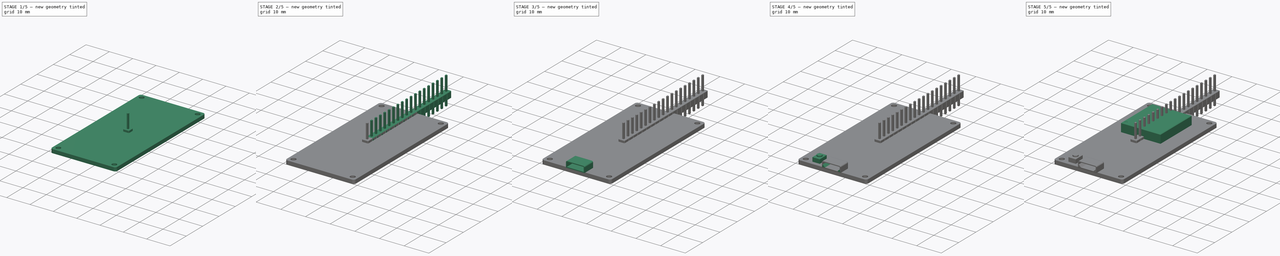
[diagram: build sequence overview — one tinted view per stage of 5, left to right]
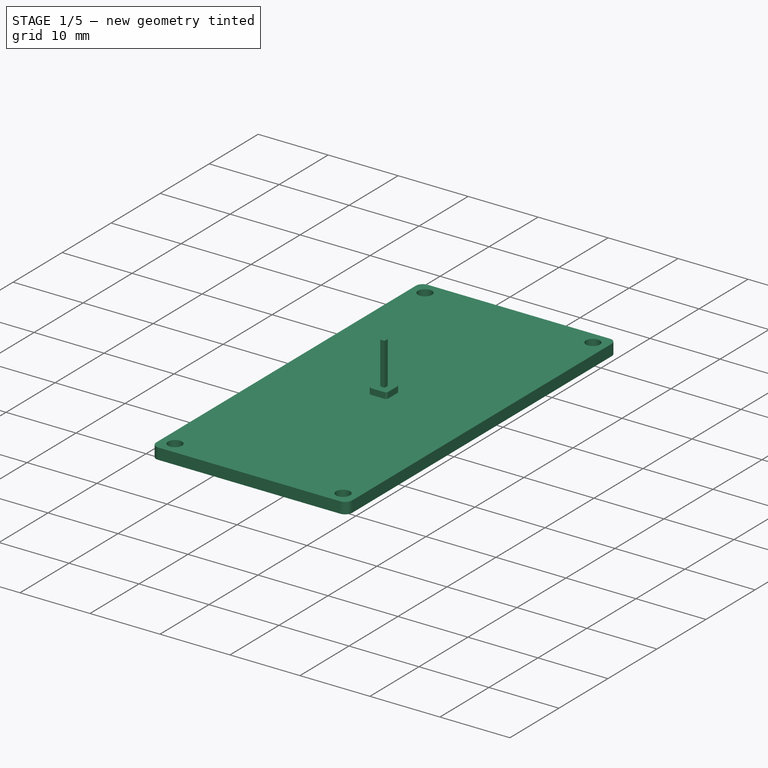
[diagram: stage 1 of 5 — iso view after this stage's code; geometry added in this stage tinted green]
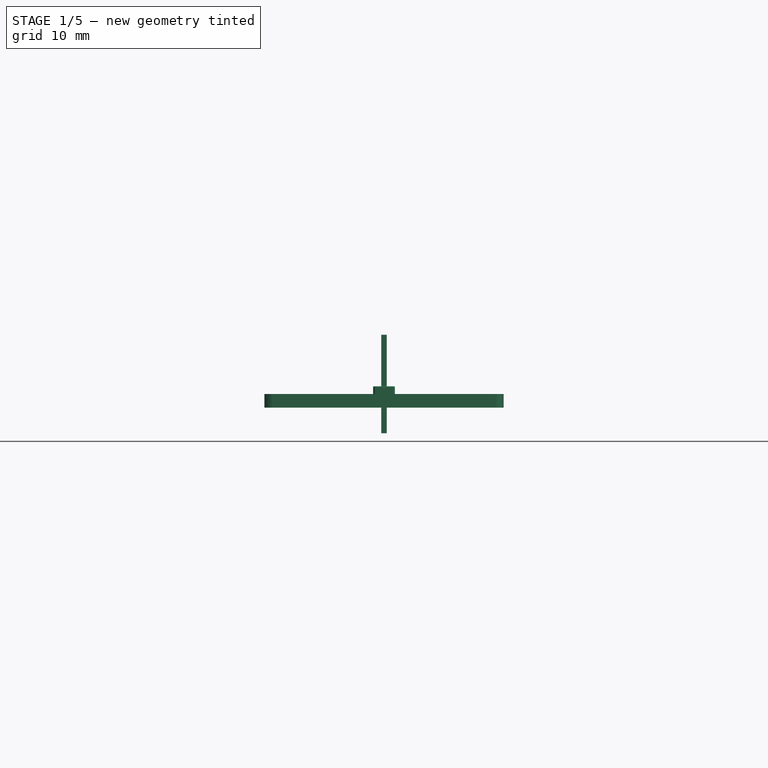
[diagram: stage 1 of 5 — front view after this stage's code; geometry added in this stage tinted green]
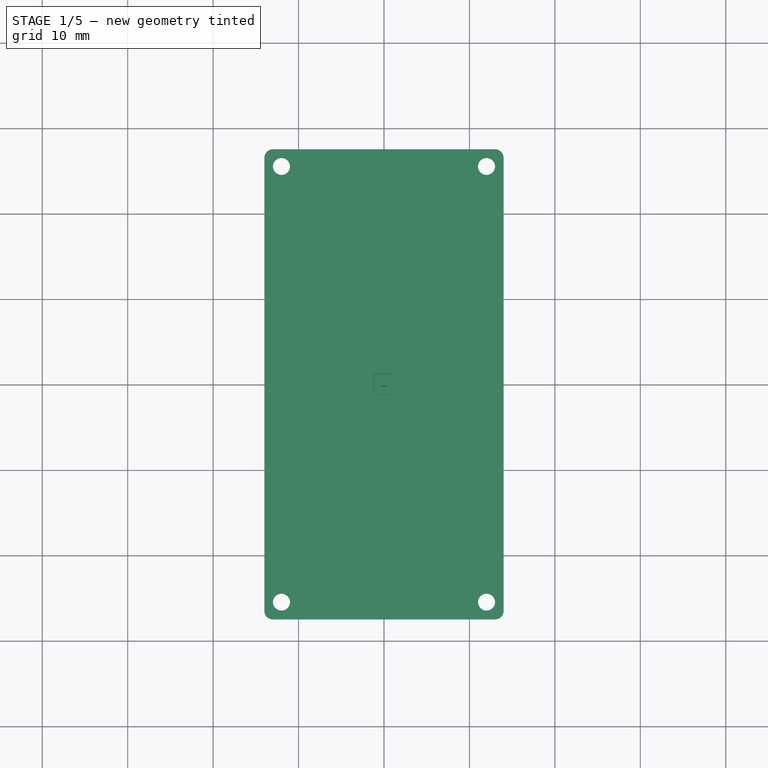
[diagram: stage 1 of 5 — top view after this stage's code; geometry added in this stage tinted green]
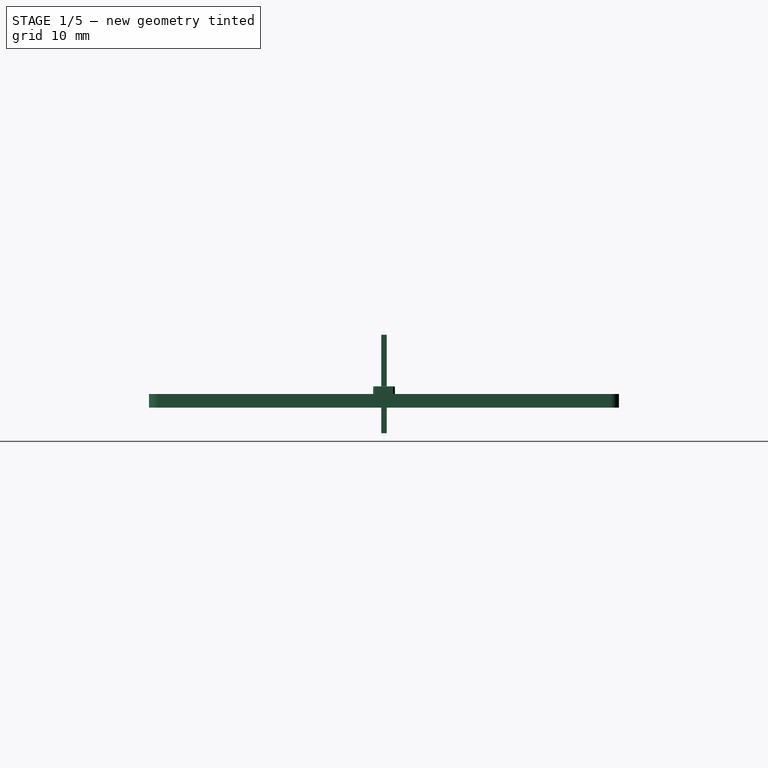
[diagram: stage 1 of 5 — right view after this stage's code; geometry added in this stage tinted green]
FCSTD DOCUMENT  (FreeCAD 0.18R4 (GitTag))
Label: ESP32 Devkit C
License: CreativeCommons Attribution-NonCommercial
LicenseURL: http://creativecommons.org/licenses/by-nc/4.0/
objects: Sketcher::SketchObject×13, PartDesign::Pad×11, PartDesign::Body×11, PartDesign::Chamfer×10, PartDesign::ShapeBinder×6, App::Part×5, PartDesign::Fillet×4, Part::FeaturePython×4, PartDesign::Pocket×2
note: 74 computed .brp shape members not serialized (recipe doc carries the construction recipe); baked Part::Feature solids carry a one-line shape summary decoded from their .brp

FEATURE [Sketcher::SketchObject] Sketch
  MapMode = 5
  Support = -> [XY_Plane001]
  sketch-geometry (8):
    g0: LineSegment StartX=-14 StartY=27.5 StartZ=0 EndX=14 EndY=27.5 EndZ=0
    g1: LineSegment StartX=14 StartY=27.5 StartZ=0 EndX=14 EndY=-27.5 EndZ=0
    g2: LineSegment StartX=14 StartY=-27.5 StartZ=0 EndX=-14 EndY=-27.5 EndZ=0
    g3: LineSegment StartX=-14 StartY=-27.5 StartZ=0 EndX=-14 EndY=27.5 EndZ=0
    g4: Circle CenterX=-12 CenterY=25.5 CenterZ=0 NormalX=0 NormalY=0 NormalZ=1 AngleXU=0 Radius=1
    g5: Circle CenterX=12 CenterY=25.5 CenterZ=0 NormalX=0 NormalY=0 NormalZ=1 AngleXU=0 Radius=1
    g6: Circle CenterX=-12 CenterY=-25.5 CenterZ=0 NormalX=0 NormalY=0 NormalZ=1 AngleXU=0 Radius=1
    g7: Circle CenterX=12 CenterY=-25.5 CenterZ=0 NormalX=0 NormalY=0 NormalZ=1 AngleXU=0 Radius=1
  constraints (19):
    c: Coincident(g0,g1)
    c: Coincident(g1,g2)
    c: Coincident(g2,g3)
    c: Coincident(g3,g0)
    c: Horizontal(g2)
    c: Vertical(g3)
    c: Symmetric(g0,g0,g-2)
    c: Symmetric(g0,g1,g-1)
    c: DistanceX(g0,g0) = 28
    c: DistanceY(g1,g1) = 55
    c: Equal(g4,g5)
    c: Equal(g5,g6)
    c: Equal(g6,g7)
    c: Radius(g4) = 1
    c: DistanceX(g0,g4) = 2
    c: DistanceY(g4,g0) = 2
    c: Symmetric(g5,g4,g-2)
    c: Symmetric(g5,g7,g-1)
    c: Symmetric(g6,g7,g-2)
FEATURE [PartDesign::Pad] Pad
  Length = 1.6
  Length2 = 100
  Profile = -> Sketch
  Type = 0
FEATURE [App::Part] Part010  label="Pin Header (left)"
  Group = -> [Body035,Body034,Array,Array001]
  Origin = -> Origin051
  Placement = pos=(-12.7,-22.85,-1.6e-15) rot=(0,1,0;3.14159rad)
FEATURE [Sketcher::SketchObject] Sketch209
  MapMode = 5
  Support = -> [XY_Plane055]
  sketch-geometry (4):
    g0: LineSegment StartX=-1.27 StartY=-1.27 StartZ=0 EndX=1.27 EndY=-1.27 EndZ=0
    g1: LineSegment StartX=1.27 StartY=-1.27 StartZ=0 EndX=1.27 EndY=1.27 EndZ=0
    g2: LineSegment StartX=1.27 StartY=1.27 StartZ=0 EndX=-1.27 EndY=1.27 EndZ=0
    g3: LineSegment StartX=-1.27 StartY=1.27 StartZ=0 EndX=-1.27 EndY=-1.27 EndZ=0
  constraints (10):
    c: Coincident(g0,g1)
    c: Coincident(g1,g2)
    c: Coincident(g2,g3)
    c: Coincident(g3,g0)
    c: Horizontal(g0)
    c: Vertical(g3)
    c: Symmetric(g1,g2,g-2)
    c: Symmetric(g0,g1,g-1)
    c: Equal(g3,g2)
    c: DistanceX(g2,g2) = 2.54
FEATURE [Sketcher::SketchObject] Sketch210
  MapMode = 5
  Placement = pos=(0,0,0) rot=(1,0,0;1.5708rad)
  Support = -> [XZ_Plane053]
  sketch-geometry (4):
    g0: LineSegment StartX=-0.32 StartY=-3 StartZ=0 EndX=0.32 EndY=-3 EndZ=0
    g1: LineSegment StartX=0.32 StartY=-3 StartZ=0 EndX=0.32 EndY=8.54 EndZ=0
    g2: LineSegment StartX=0.32 StartY=8.54 StartZ=0 EndX=-0.32 EndY=8.54 EndZ=0
    g3: LineSegment StartX=-0.32 StartY=8.54 StartZ=0 EndX=-0.32 EndY=-3 EndZ=0
  constraints (11):
    c: Coincident(g0,g1)
    c: Coincident(g1,g2)
    c: Coincident(g2,g3)
    c: Coincident(g3,g0)
    c: Horizontal(g0)
    c: Vertical(g1)
    c: Vertical(g3)
    c: DistanceY(g-1,g1) = 8.54
    c: DistanceY(g0,g-1) = 3
    c: Symmetric(g2,g1,g-2)
    c: DistanceX(g2,g2) = 0.64
FEATURE [PartDesign::Pad] Pad064
  Length = 2.5
  Length2 = 100
  Profile = -> Sketch209
  Type = 0
FEATURE [PartDesign::Pad] Pad065
  Length = 0.32
  Length2 = 0.32
  Placement = pos=(0,0,0) rot=(1,0,0;1.5708rad)
  Profile = -> Sketch210
  Type = 4
FEATURE [PartDesign::Chamfer] Chamfer017
  Base = -> Pad064 [Edge2,Edge1,Edge5,Edge8]
  BaseFeature = -> Pad064
  Size = 0.2
FEATURE [PartDesign::Chamfer] Chamfer016
  Base = -> Chamfer017 [Face5,Face2]
  BaseFeature = -> Chamfer017
  Size = 0.05
FEATURE [App::Part] Part011  label="Pin Header (right)"
  Group = -> [Body036,Body037,Array002,Array003]
  Origin = -> Origin053
  Placement = pos=(12.7,-22.85,1.5e-15) rot=(0,1,0;3.14159rad)
FEATURE [PartDesign::Fillet] Fillet003
  Base = -> Pad [Edge5,Edge8,Edge2,Edge1]
  BaseFeature = -> Pad
  Radius = 1
FEATURE [PartDesign::Body] Body  label="ESP32 PCB"
  Group = -> [Sketch,Pad,Fillet003]
  Origin = -> Origin001
  Tip = -> Fillet003
FEATURE [App::Part] Part  label="ESP32 Devkit C"
  Group = -> [Body,Body001,Part001,Part002,Body006,Part010,Part011]
  Origin = -> Origin
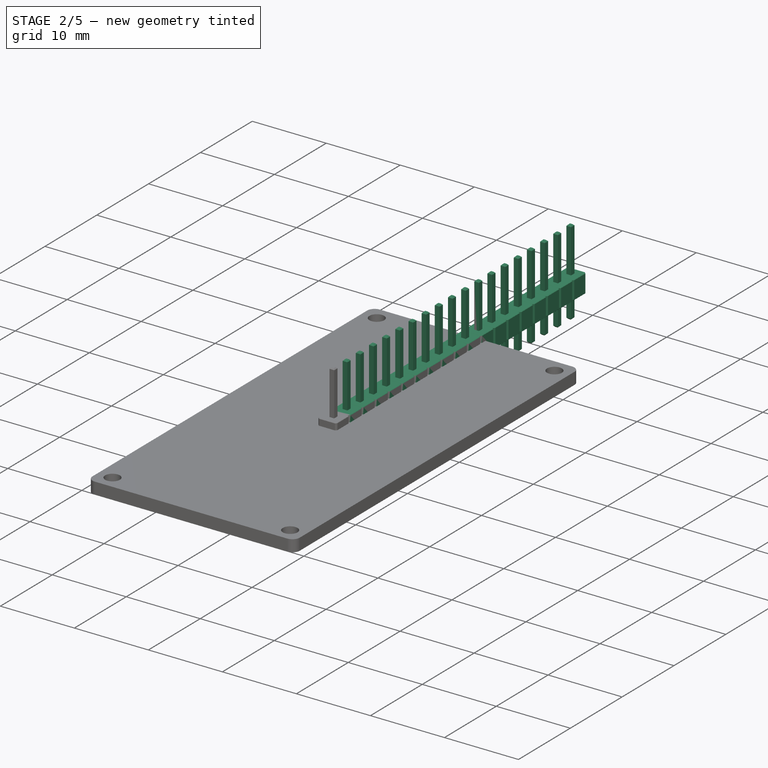
[diagram: stage 2 of 5 — iso view after this stage's code; geometry added in this stage tinted green]
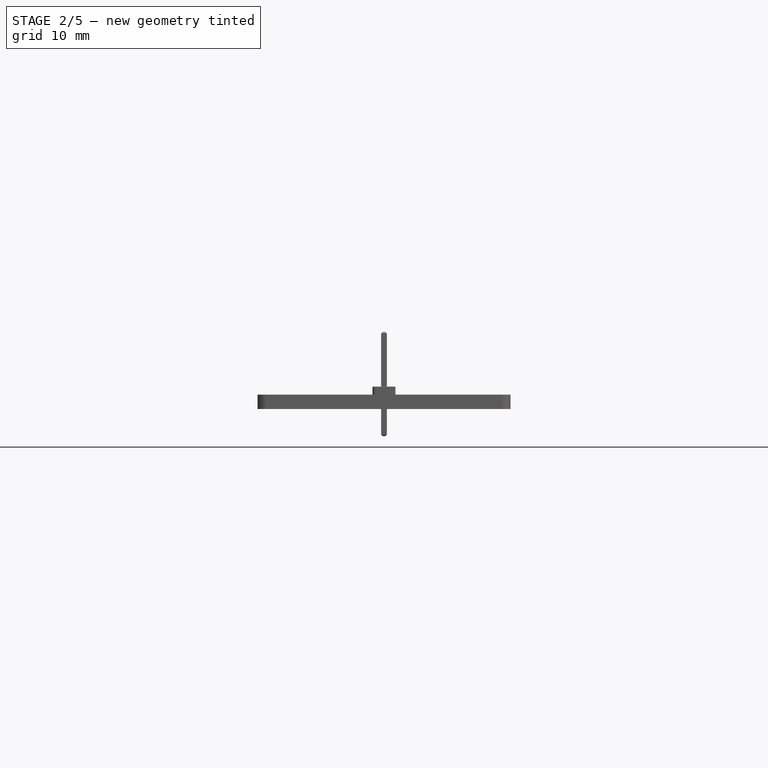
[diagram: stage 2 of 5 — front view after this stage's code; geometry added in this stage tinted green]
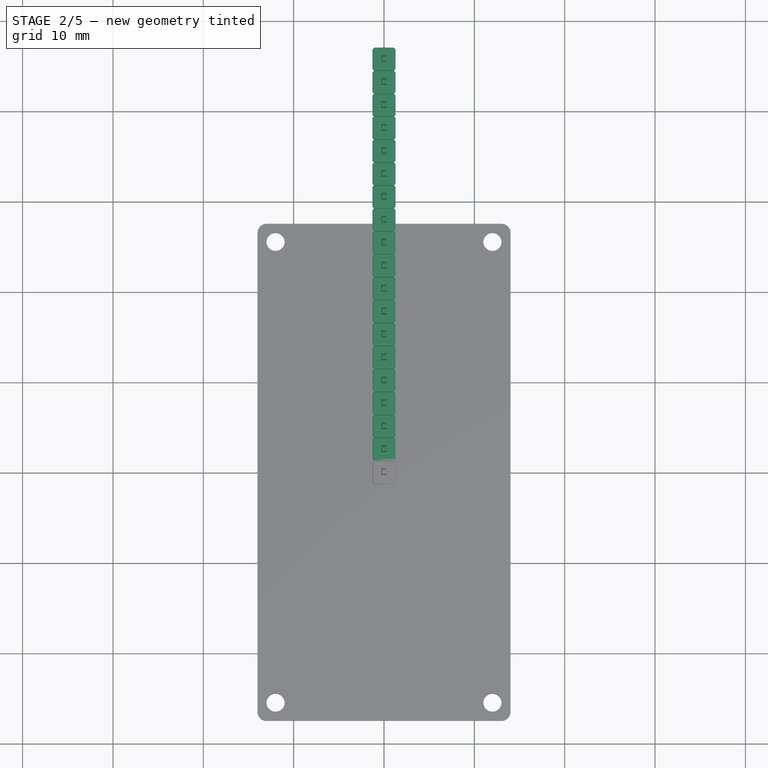
[diagram: stage 2 of 5 — top view after this stage's code; geometry added in this stage tinted green]
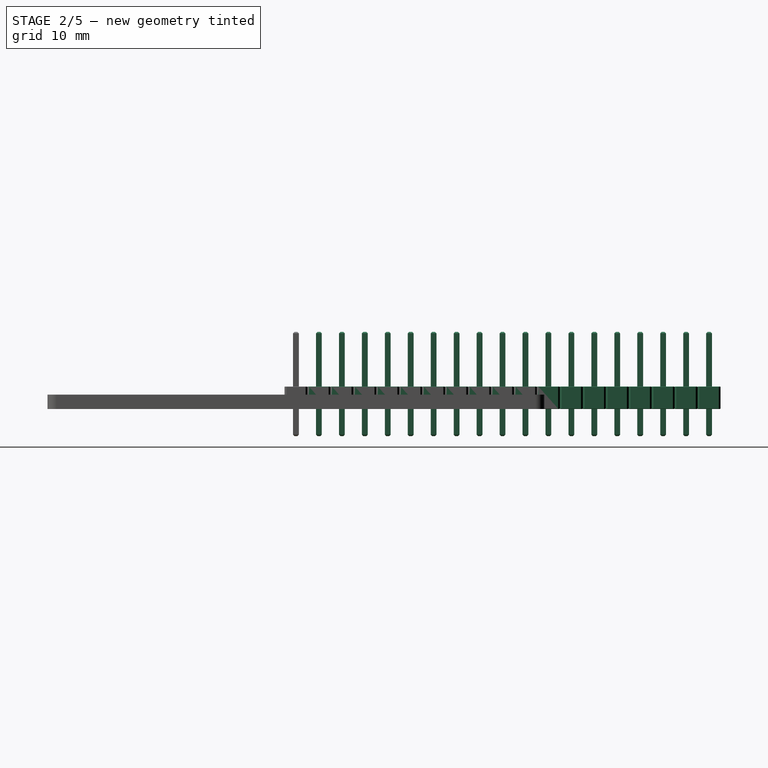
[diagram: stage 2 of 5 — right view after this stage's code; geometry added in this stage tinted green]
FEATURE [PartDesign::Body] Body006  label="Micro-USB"
  Group = -> [CopyPad003,Sketch007,Pad006,Sketch008,Pocket001,Fillet,Chamfer003,Fillet001,Fillet002]
  Origin = -> Origin009
  Tip = -> Fillet002
FEATURE [Sketcher::SketchObject] Sketch207
  MapMode = 5
  Placement = pos=(0,0,0) rot=(1,0,0;1.5708rad)
  Support = -> [XZ_Plane050]
  sketch-geometry (4):
    g0: LineSegment StartX=-0.32 StartY=-3 StartZ=0 EndX=0.32 EndY=-3 EndZ=0
    g1: LineSegment StartX=0.32 StartY=-3 StartZ=0 EndX=0.32 EndY=8.54 EndZ=0
    g2: LineSegment StartX=0.32 StartY=8.54 StartZ=0 EndX=-0.32 EndY=8.54 EndZ=0
    g3: LineSegment StartX=-0.32 StartY=8.54 StartZ=0 EndX=-0.32 EndY=-3 EndZ=0
  constraints (11):
    c: Coincident(g0,g1)
    c: Coincident(g1,g2)
    c: Coincident(g2,g3)
    c: Coincident(g3,g0)
    c: Horizontal(g0)
    c: Vertical(g1)
    c: Vertical(g3)
    c: DistanceY(g-1,g1) = 8.54
    c: DistanceY(g0,g-1) = 3
    c: Symmetric(g2,g1,g-2)
    c: DistanceX(g2,g2) = 0.64
FEATURE [Sketcher::SketchObject] Sketch208
  MapMode = 5
  Support = -> [XY_Plane052]
  sketch-geometry (4):
    g0: LineSegment StartX=-1.27 StartY=-1.27 StartZ=0 EndX=1.27 EndY=-1.27 EndZ=0
    g1: LineSegment StartX=1.27 StartY=-1.27 StartZ=0 EndX=1.27 EndY=1.27 EndZ=0
    g2: LineSegment StartX=1.27 StartY=1.27 StartZ=0 EndX=-1.27 EndY=1.27 EndZ=0
    g3: LineSegment StartX=-1.27 StartY=1.27 StartZ=0 EndX=-1.27 EndY=-1.27 EndZ=0
  constraints (10):
    c: Coincident(g0,g1)
    c: Coincident(g1,g2)
    c: Coincident(g2,g3)
    c: Coincident(g3,g0)
    c: Horizontal(g0)
    c: Vertical(g3)
    c: Symmetric(g1,g2,g-2)
    c: Symmetric(g0,g1,g-1)
    c: Equal(g3,g2)
    c: DistanceX(g2,g2) = 2.54
FEATURE [PartDesign::Pad] Pad062
  Length = 0.32
  Length2 = 0.32
  Placement = pos=(0,0,0) rot=(1,0,0;1.5708rad)
  Profile = -> Sketch207
  Type = 4
FEATURE [PartDesign::Chamfer] Chamfer012
  Base = -> Pad062 [Face3,Face1]
  BaseFeature = -> Pad062
  Placement = pos=(0,0,0) rot=(1,0,0;1.5708rad)
  Size = 0.16
FEATURE [Part::FeaturePython] Array001  # Draft array (typed FeaturePython)
  Angle = 360
  ArrayType = 0
  Axis = (0,0,1)
  Base = -> Body034
  Center = (0,0,0)
  Fuse = false
  IntervalAxis = (0,0,0)
  IntervalX = (1,0,0)
  IntervalY = (0,2.54,0)
  IntervalZ = (0,0,1)
  NumberPolar = 1
  NumberX = 1
  NumberY = 19
  NumberZ = 1
FEATURE [PartDesign::Chamfer] Chamfer015
  Base = -> Pad065 [Face3,Face1]
  BaseFeature = -> Pad065
  Placement = pos=(0,0,0) rot=(1,0,0;1.5708rad)
  Size = 0.16
FEATURE [PartDesign::Body] Body037  label="Pin Header Pin002"
  Group = -> [Sketch210,Pad065,Chamfer015]
  Origin = -> Origin055
  Tip = -> Chamfer015
FEATURE [Part::FeaturePython] Array003  # Draft array (typed FeaturePython)
  Angle = 360
  ArrayType = 0
  Axis = (0,0,1)
  Base = -> Body037
  Center = (0,0,0)
  Fuse = false
  IntervalAxis = (0,0,0)
  IntervalX = (1,0,0)
  IntervalY = (0,2.54,0)
  IntervalZ = (0,0,1)
  NumberPolar = 1
  NumberX = 1
  NumberY = 19
  NumberZ = 1
FEATURE [PartDesign::Body] Body036  label="Pin Header Block002"
  Group = -> [Sketch209,Pad064,Chamfer017,Chamfer016]
  Origin = -> Origin054
  Tip = -> Chamfer016
FEATURE [Part::FeaturePython] Array002  # Draft array (typed FeaturePython)
  Angle = 360
  ArrayType = 0
  Axis = (0,0,1)
  Base = -> Body036
  Center = (0,0,0)
  Fuse = false
  IntervalAxis = (0,0,0)
  IntervalX = (1,0,0)
  IntervalY = (0,2.54,0)
  IntervalZ = (0,0,1)
  NumberPolar = 1
  NumberX = 1
  NumberY = 19
  NumberZ = 1
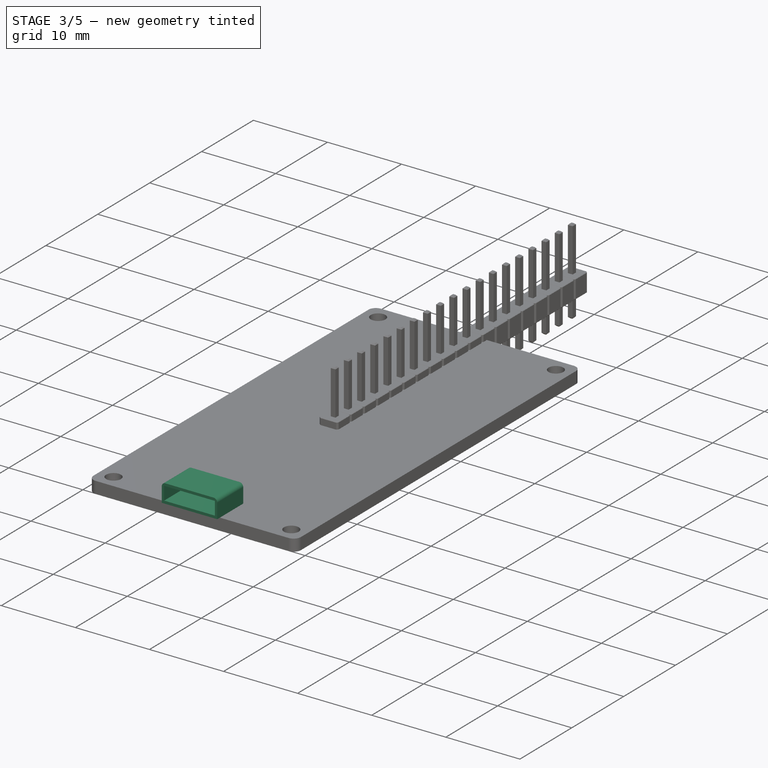
[diagram: stage 3 of 5 — iso view after this stage's code; geometry added in this stage tinted green]
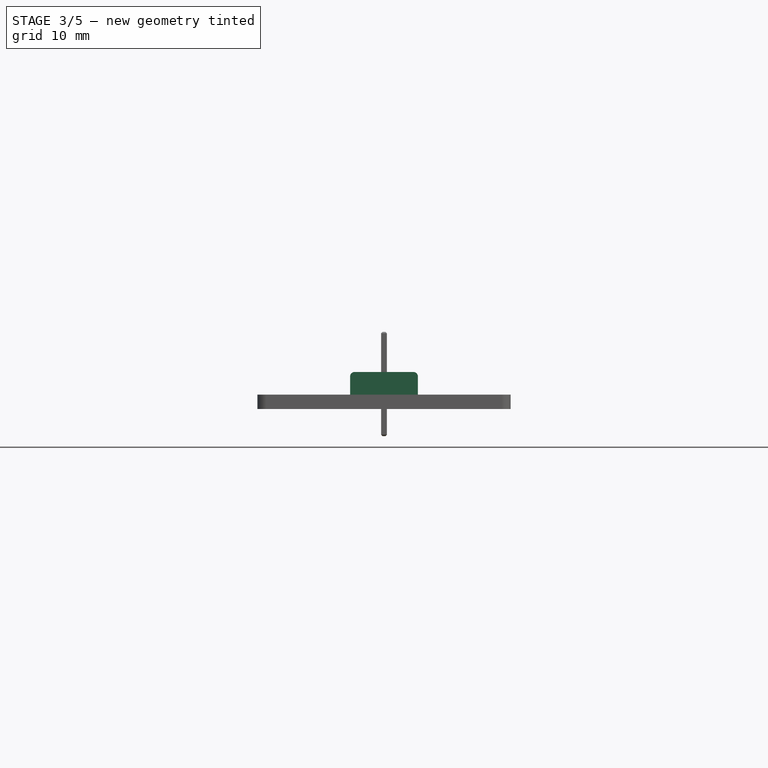
[diagram: stage 3 of 5 — front view after this stage's code; geometry added in this stage tinted green]
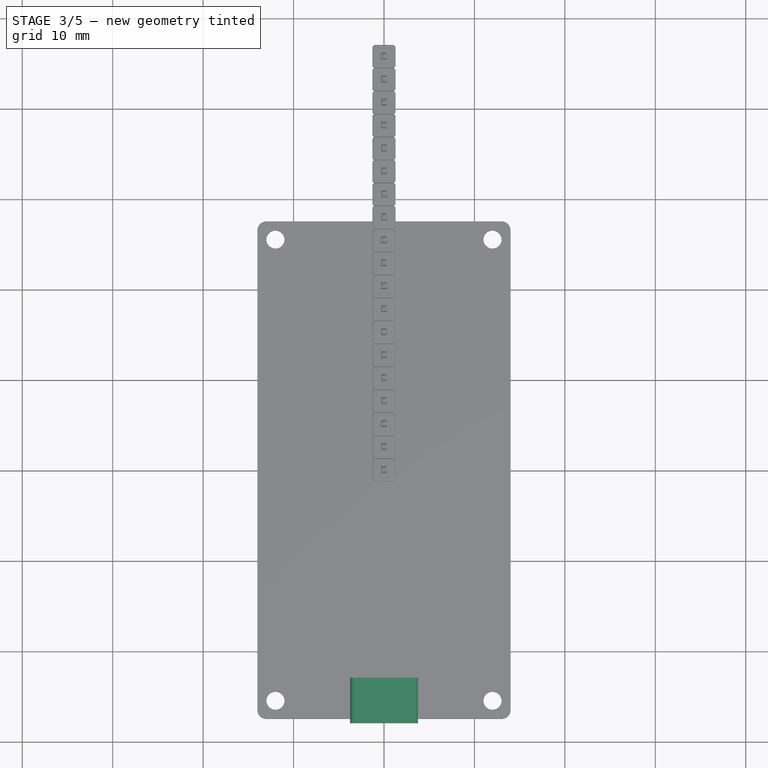
[diagram: stage 3 of 5 — top view after this stage's code; geometry added in this stage tinted green]
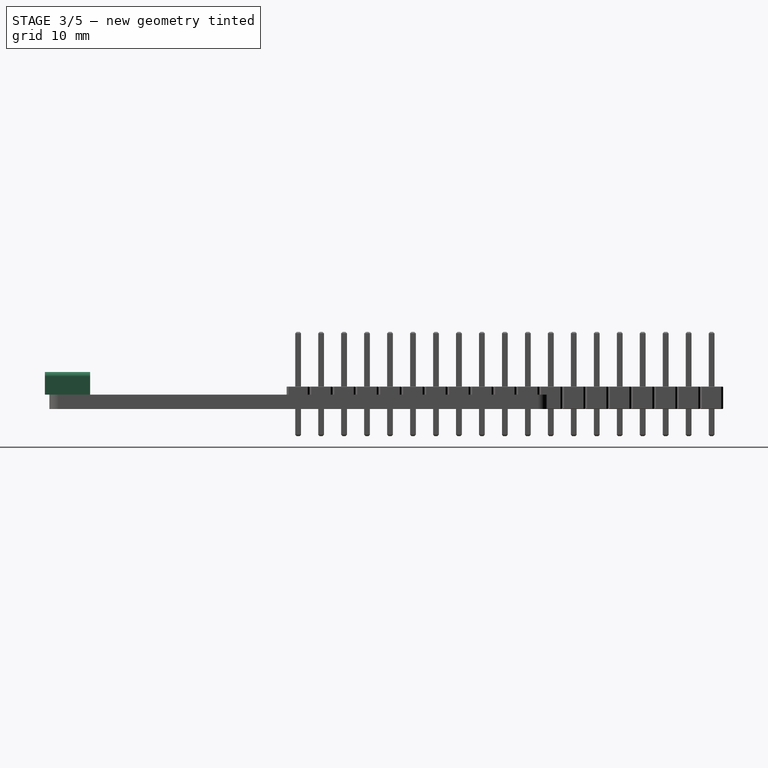
[diagram: stage 3 of 5 — right view after this stage's code; geometry added in this stage tinted green]
FEATURE [PartDesign::Body] Body005  label="Push Button Block001"
  Group = -> [CopyPad002,Sketch005,Pad005,Chamfer002]
  Origin = -> Origin008
  Tip = -> Chamfer002
FEATURE [App::Part] Part002  label="Push Button Boot"
  Group = -> [Body005,Body004]
  Origin = -> Origin006
  Placement = pos=(15,0,0) rot=(0,0,1;0rad)
FEATURE [PartDesign::ShapeBinder] CopyPad003
  Placement = pos=(0,0,1.6) rot=(0,0,1;0rad)
  TraceSupport = false
FEATURE [Sketcher::SketchObject] Sketch007
  MapMode = 5
  Placement = pos=(0,0,1.6) rot=(0,0,1;0rad)
  Support = -> [CopyPad003]
  sketch-geometry (4):
    g0: LineSegment StartX=-3.75 StartY=-28 StartZ=0 EndX=3.75 EndY=-28 EndZ=0
    g1: LineSegment StartX=3.75 StartY=-28 StartZ=0 EndX=3.75 EndY=-23 EndZ=0
    g2: LineSegment StartX=3.75 StartY=-23 StartZ=0 EndX=-3.75 EndY=-23 EndZ=0
    g3: LineSegment StartX=-3.75 StartY=-23 StartZ=0 EndX=-3.75 EndY=-28 EndZ=0
  constraints (11):
    c: Coincident(g0,g1)
    c: Coincident(g1,g2)
    c: Coincident(g2,g3)
    c: Coincident(g3,g0)
    c: Horizontal(g0)
    c: Vertical(g1)
    c: Vertical(g3)
    c: Symmetric(g1,g2,g-2)
    c: DistanceX(g2,g2) = 7.5
    c: DistanceY(g1,g1) = 5
    c: DistanceY(g1,g-1) = 23
FEATURE [PartDesign::Pad] Pad006
  Length = 2.5
  Length2 = 100
  Placement = pos=(0,0,1.6) rot=(0,0,1;0rad)
  Profile = -> Sketch007
  Type = 0
FEATURE [Sketcher::SketchObject] Sketch008
  MapMode = 5
  Placement = pos=(0,-28,1.6) rot=(1,0,0;1.5708rad)
  Support = -> [Pad006]
  sketch-geometry (4):
    g0: LineSegment StartX=-3.425 StartY=0.35 StartZ=0 EndX=3.425 EndY=0.35 EndZ=0
    g1: LineSegment StartX=3.425 StartY=0.35 StartZ=0 EndX=3.425 EndY=2.15 EndZ=0
    g2: LineSegment StartX=3.425 StartY=2.15 StartZ=0 EndX=-3.425 EndY=2.15 EndZ=0
    g3: LineSegment StartX=-3.425 StartY=2.15 StartZ=0 EndX=-3.425 EndY=0.35 EndZ=0
  constraints (11):
    c: Coincident(g1,g2)
    c: Coincident(g2,g3)
    c: Horizontal(g0)
    c: Vertical(g1)
    c: Vertical(g3)
    c: DistanceY(g0,g1) = 1.8
    c: DistanceX(g2,g2) = 6.85
    c: Symmetric(g1,g2,g-2)
    c: Coincident(g3,g0)
    c: Coincident(g0,g1)
    c: DistanceY(g-1,g0) = 0.35
FEATURE [PartDesign::Pocket] Pocket001
  BaseFeature = -> Pad006
  Length = 4
  Length2 = 100
  Placement = pos=(0,0,1.6) rot=(0,0,1;0rad)
  Profile = -> Sketch008
  Type = 0
FEATURE [PartDesign::Fillet] Fillet
  Base = -> Pocket001 [Edge11,Edge14]
  BaseFeature = -> Pocket001
  Placement = pos=(0,0,1.6) rot=(0,0,1;0rad)
  Radius = 0.5
FEATURE [PartDesign::Body] Body034  label="Pin Header Pin001"
  Group = -> [Sketch207,Pad062,Chamfer012]
  Origin = -> Origin050
  Tip = -> Chamfer012
FEATURE [PartDesign::Pad] Pad063
  Length = 2.5
  Length2 = 100
  Profile = -> Sketch208
  Type = 0
FEATURE [PartDesign::Chamfer] Chamfer014
  Base = -> Pad063 [Edge2,Edge1,Edge5,Edge8]
  BaseFeature = -> Pad063
  Size = 0.2
FEATURE [PartDesign::Chamfer] Chamfer013
  Base = -> Chamfer014 [Face5,Face2]
  BaseFeature = -> Chamfer014
  Size = 0.05
FEATURE [PartDesign::Body] Body035  label="Pin Header Block001"
  Group = -> [Sketch208,Pad063,Chamfer014,Chamfer013]
  Origin = -> Origin052
  Tip = -> Chamfer013
FEATURE [Part::FeaturePython] Array  # Draft array (typed FeaturePython)
  Angle = 360
  ArrayType = 0
  Axis = (0,0,1)
  Base = -> Body035
  Center = (0,0,0)
  Fuse = false
  IntervalAxis = (0,0,0)
  IntervalX = (1,0,0)
  IntervalY = (0,2.54,0)
  IntervalZ = (0,0,1)
  NumberPolar = 1
  NumberX = 1
  NumberY = 19
  NumberZ = 1
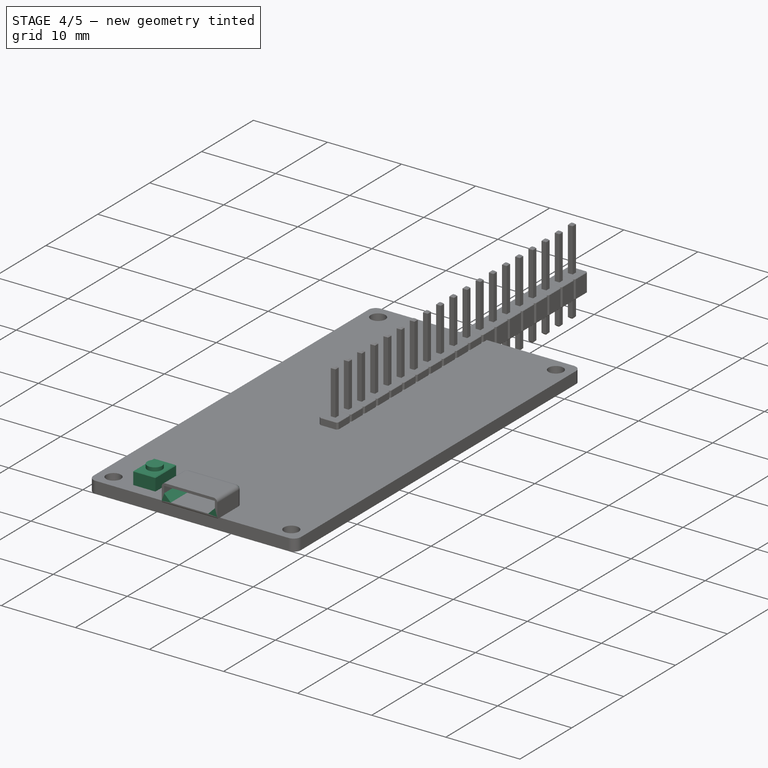
[diagram: stage 4 of 5 — iso view after this stage's code; geometry added in this stage tinted green]
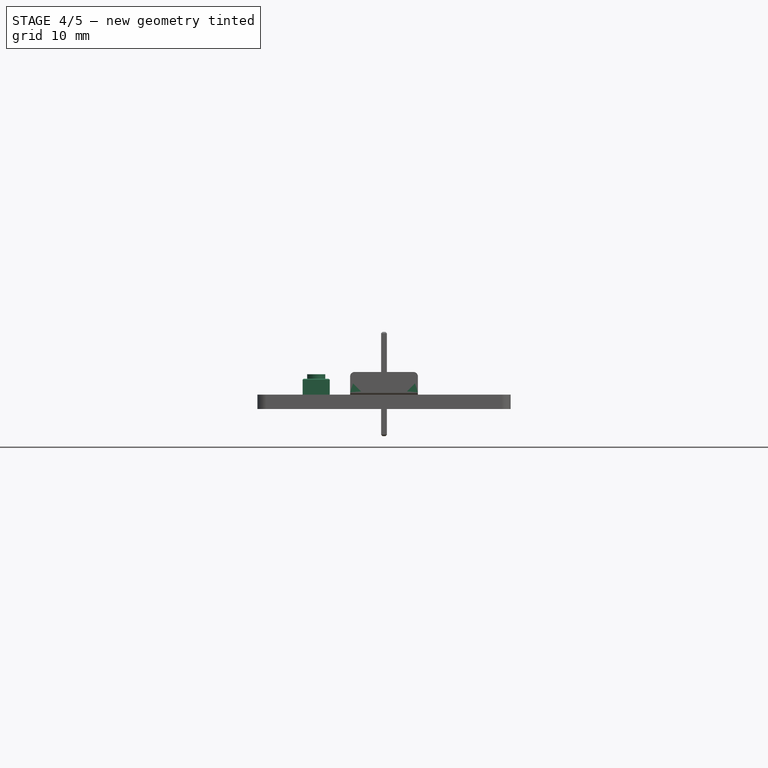
[diagram: stage 4 of 5 — front view after this stage's code; geometry added in this stage tinted green]
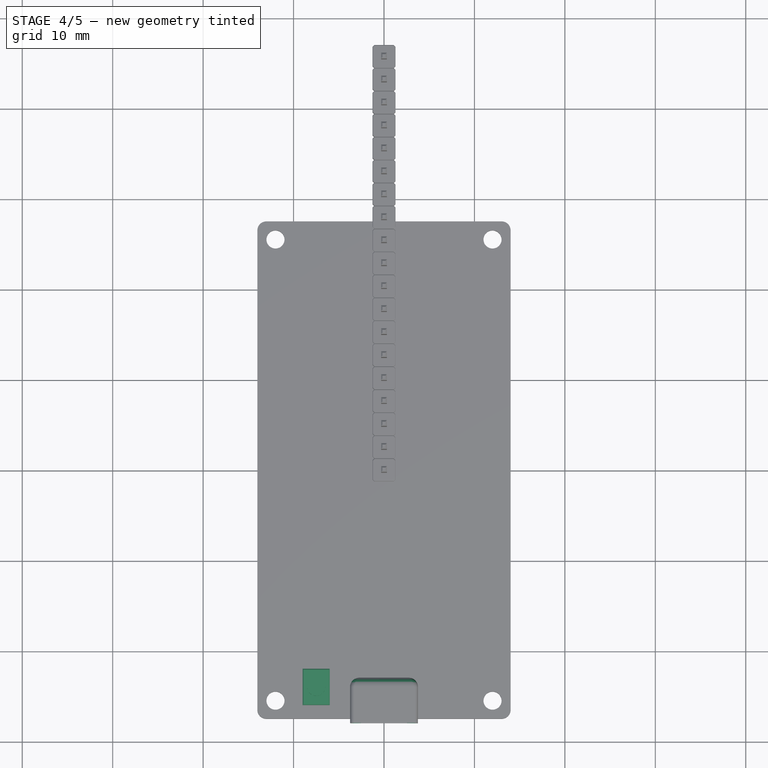
[diagram: stage 4 of 5 — top view after this stage's code; geometry added in this stage tinted green]
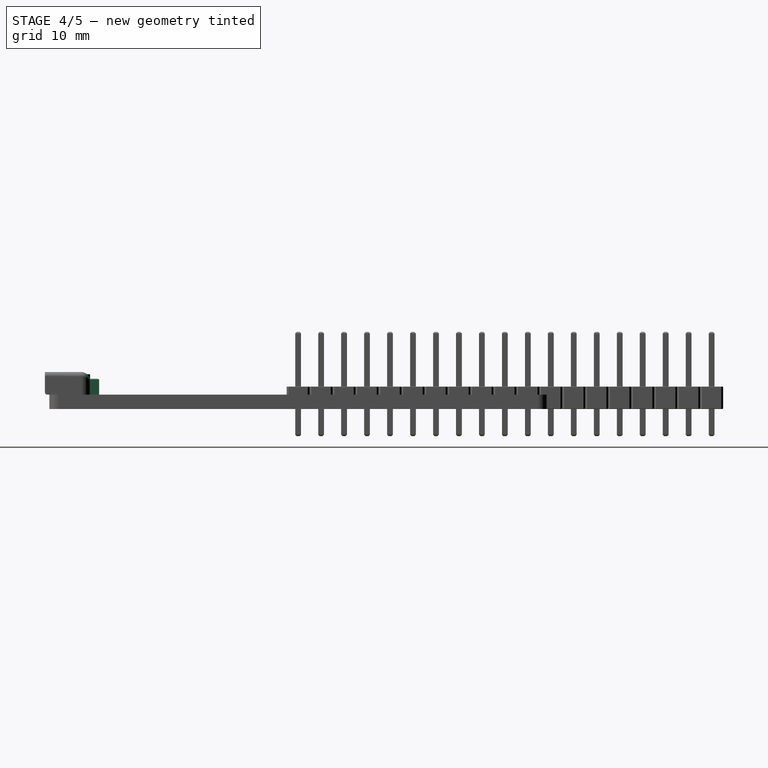
[diagram: stage 4 of 5 — right view after this stage's code; geometry added in this stage tinted green]
FEATURE [PartDesign::Body] Body003  label="Push Button Button"
  Group = -> [CopyChamfer001,Sketch004,Pad003]
  Origin = -> Origin005
  Tip = -> Pad003
FEATURE [App::Part] Part001  label="Push Button Reset"
  Group = -> [Body002,Body003]
  Origin = -> Origin004
FEATURE [PartDesign::ShapeBinder] CopyChamfer002
  Placement = pos=(0,0,1.75) rot=(0,0,1;0rad)
  TraceSupport = false
FEATURE [Sketcher::SketchObject] Sketch006
  MapMode = 5
  Placement = pos=(0,0,3.35) rot=(0,0,1;0rad)
  Support = -> [CopyChamfer002]
  sketch-geometry (1):
    g0: Circle CenterX=-7.5 CenterY=-24 CenterZ=0 NormalX=0 NormalY=0 NormalZ=1 AngleXU=0 Radius=1
  constraints (3):
    c: Radius(g0) = 1
    c: DistanceX(g0,g-1) = 7.5
    c: DistanceY(g0,g-1) = 24
FEATURE [PartDesign::Pad] Pad004
  Length = 0.5
  Length2 = 100
  Placement = pos=(0,0,1.75) rot=(0,0,1;0rad)
  Profile = -> Sketch006
  Type = 0
FEATURE [PartDesign::Body] Body004  label="Push Button Button001"
  Group = -> [CopyChamfer002,Sketch006,Pad004]
  Origin = -> Origin007
  Tip = -> Pad004
FEATURE [PartDesign::ShapeBinder] CopyPad002
  Placement = pos=(0,0,1.6) rot=(0,0,1;0rad)
  TraceSupport = false
FEATURE [Sketcher::SketchObject] Sketch005
  MapMode = 5
  Placement = pos=(0,0,1.6) rot=(0,0,1;0rad)
  Support = -> [CopyPad002]
  sketch-geometry (4):
    g0: LineSegment StartX=-9 StartY=-26 StartZ=0 EndX=-6 EndY=-26 EndZ=0
    g1: LineSegment StartX=-6 StartY=-26 StartZ=0 EndX=-6 EndY=-22 EndZ=0
    g2: LineSegment StartX=-6 StartY=-22 StartZ=0 EndX=-9 EndY=-22 EndZ=0
    g3: LineSegment StartX=-9 StartY=-22 StartZ=0 EndX=-9 EndY=-26 EndZ=0
  constraints (12):
    c: Coincident(g0,g1)
    c: Coincident(g1,g2)
    c: Coincident(g2,g3)
    c: Coincident(g3,g0)
    c: Horizontal(g0)
    c: Horizontal(g2)
    c: Vertical(g1)
    c: Vertical(g3)
    c: DistanceX(g2,g2) = 3
    c: DistanceY(g3,g3) = 4
    c: DistanceX(g0,g-1) = 9
    c: DistanceY(g1,g-1) = 22
FEATURE [PartDesign::Pad] Pad005
  Length = 1.75
  Length2 = 100
  Placement = pos=(0,0,1.6) rot=(0,0,1;0rad)
  Profile = -> Sketch005
  Type = 0
FEATURE [PartDesign::Chamfer] Chamfer002
  Base = -> Pad005 [Face6]
  BaseFeature = -> Pad005
  Placement = pos=(0,0,1.6) rot=(0,0,1;0rad)
  Size = 0.1
FEATURE [PartDesign::Chamfer] Chamfer003
  Base = -> Fillet [Edge28,Edge24]
  BaseFeature = -> Fillet
  Placement = pos=(0,0,1.6) rot=(0,0,1;0rad)
  Size = 0.9
FEATURE [PartDesign::Fillet] Fillet001
  Base = -> Chamfer003 [Edge9]
  BaseFeature = -> Chamfer003
  Placement = pos=(0,0,1.6) rot=(0,0,1;0rad)
  Radius = 0.25
FEATURE [PartDesign::Fillet] Fillet002
  Base = -> Fillet001 [Edge25]
  BaseFeature = -> Fillet001
  Placement = pos=(0,0,1.6) rot=(0,0,1;0rad)
  Radius = 1
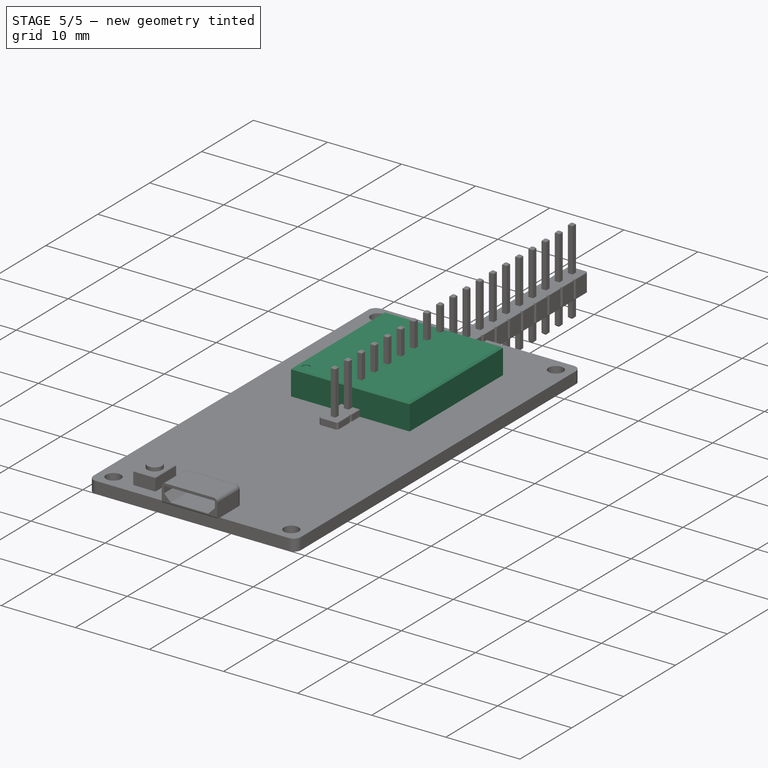
[diagram: stage 5 of 5 — iso view after this stage's code; geometry added in this stage tinted green]
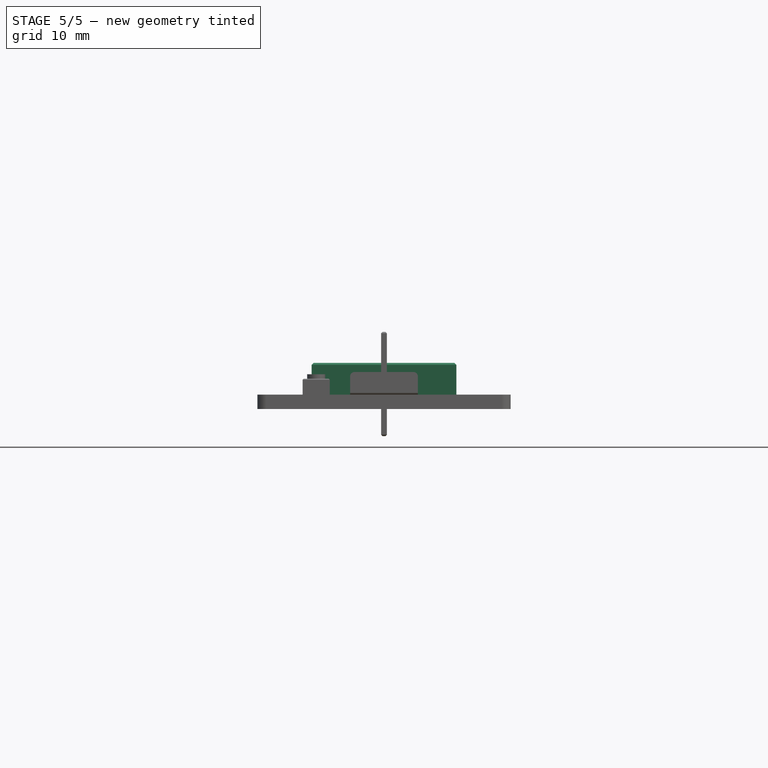
[diagram: stage 5 of 5 — front view after this stage's code; geometry added in this stage tinted green]
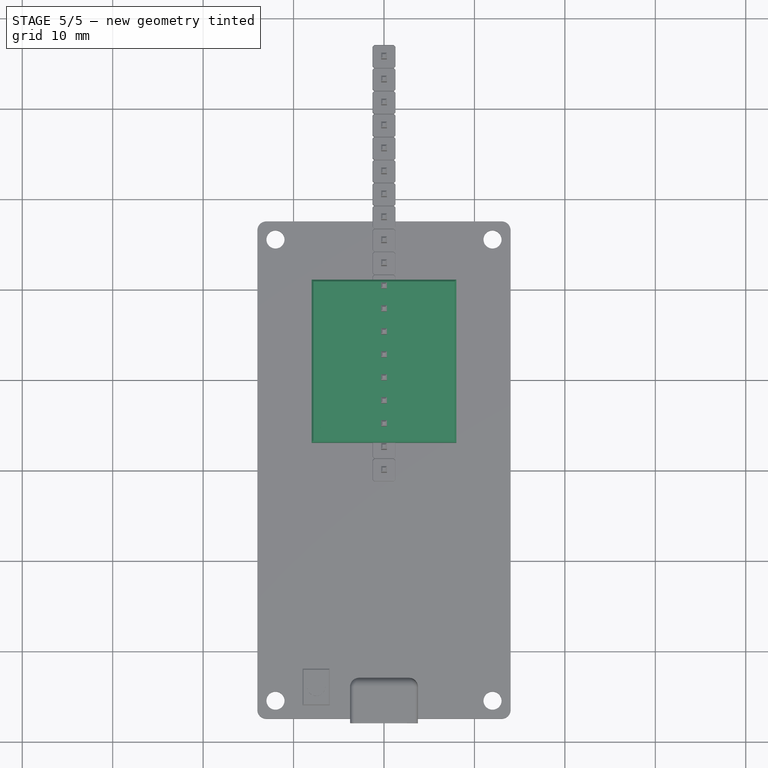
[diagram: stage 5 of 5 — top view after this stage's code; geometry added in this stage tinted green]
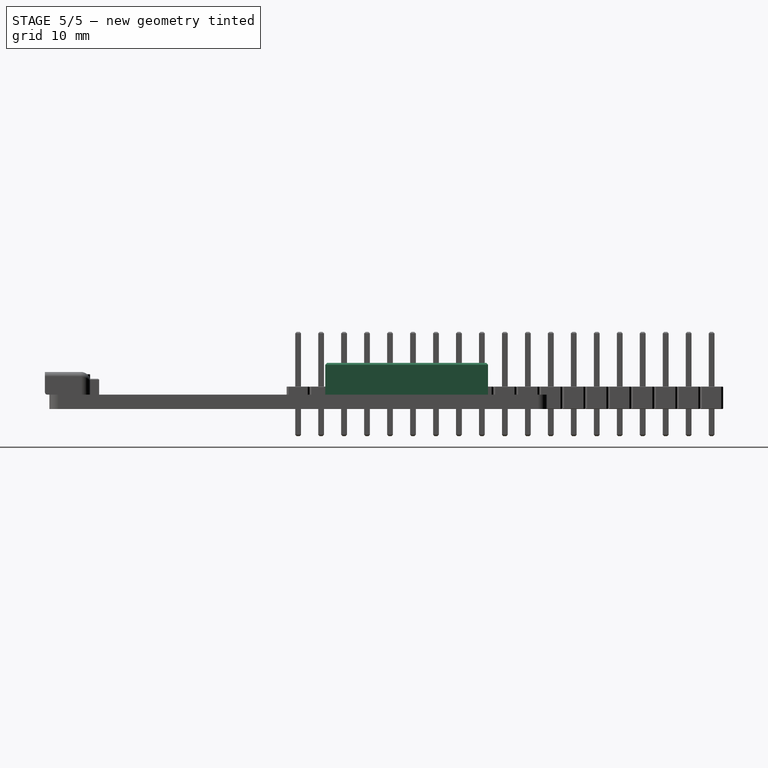
[diagram: stage 5 of 5 — right view after this stage's code; geometry added in this stage tinted green]
FEATURE [PartDesign::ShapeBinder] CopyPad
  Placement = pos=(0,0,1.6) rot=(0,0,1;0rad)
  TraceSupport = false
FEATURE [Sketcher::SketchObject] Sketch001
  MapMode = 5
  Placement = pos=(0,0,1.6) rot=(0,0,1;0rad)
  Support = -> [CopyPad]
  sketch-geometry (4):
    g0: LineSegment StartX=-8 StartY=21 StartZ=0 EndX=8 EndY=21 EndZ=0
    g1: LineSegment StartX=8 StartY=21 StartZ=0 EndX=8 EndY=3 EndZ=0
    g2: LineSegment StartX=8 StartY=3 StartZ=0 EndX=-8 EndY=3 EndZ=0
    g3: LineSegment StartX=-8 StartY=3 StartZ=0 EndX=-8 EndY=21 EndZ=0
  constraints (11):
    c: Coincident(g0,g1)
    c: Coincident(g1,g2)
    c: Coincident(g2,g3)
    c: Coincident(g3,g0)
    c: Horizontal(g2)
    c: Vertical(g1)
    c: Vertical(g3)
    c: Symmetric(g0,g0,g-2)
    c: DistanceX(g0,g0) = 16
    c: DistanceY(g1,g0) = 18
    c: DistanceY(g-1,g1) = 3
FEATURE [PartDesign::Pad] Pad001
  Length = 3.5
  Length2 = 100
  Placement = pos=(0,0,1.6) rot=(0,0,1;0rad)
  Profile = -> Sketch001
  Type = 0
FEATURE [PartDesign::Chamfer] Chamfer
  Base = -> Pad001 [Face6]
  BaseFeature = -> Pad001
  Placement = pos=(0,0,1.6) rot=(0,0,1;0rad)
  Size = 0.2
FEATURE [Sketcher::SketchObject] Sketch002
  ExternalGeometry = -> [Chamfer]
  MapMode = 5
  Placement = pos=(0,0,5.1) rot=(0,0,1;0rad)
  Support = -> [Chamfer]
  sketch-geometry (5):
    g0: Circle CenterX=-6.8 CenterY=4.2 CenterZ=0 NormalX=0 NormalY=0 NormalZ=1 AngleXU=0 Radius=0.5
    g1: LineSegment [constr] StartX=-7.8 StartY=3.2 StartZ=0 EndX=-6.8 EndY=3.2 EndZ=0
    g2: LineSegment [constr] StartX=-6.8 StartY=3.2 StartZ=0 EndX=-6.8 EndY=4.2 EndZ=0
    g3: LineSegment [constr] StartX=-6.8 StartY=4.2 StartZ=0 EndX=-7.8 EndY=4.2 EndZ=0
    g4: LineSegment [constr] StartX=-7.8 StartY=4.2 StartZ=0 EndX=-7.8 EndY=3.2 EndZ=0
  constraints (13):
    c: Coincident(g1,g2)
    c: Coincident(g2,g3)
    c: Coincident(g3,g4)
    c: Coincident(g4,g1)
    c: Horizontal(g1)
    c: Horizontal(g3)
    c: Vertical(g2)
    c: Vertical(g4)
    c: Coincident(g1,g-4)
    c: Coincident(g2,g0)
    c: Equal(g2,g3)
    c: DistanceY(g2,g2) = 1
    c: Radius(g0) = 0.5
FEATURE [PartDesign::Pocket] Pocket
  BaseFeature = -> Chamfer
  Length = 0.1
  Length2 = 100
  Placement = pos=(0,0,1.6) rot=(0,0,1;0rad)
  Profile = -> Sketch002
  Type = 0
FEATURE [PartDesign::Body] Body001  label="ESP32"
  Group = -> [CopyPad,Sketch001,Pad001,Chamfer,Sketch002,Pocket]
  Origin = -> Origin002
  Tip = -> Pocket
FEATURE [PartDesign::ShapeBinder] CopyPad001
  Placement = pos=(0,0,1.6) rot=(0,0,1;0rad)
  TraceSupport = false
FEATURE [Sketcher::SketchObject] Sketch003
  MapMode = 5
  Placement = pos=(0,0,1.6) rot=(0,0,1;0rad)
  Support = -> [CopyPad001]
  sketch-geometry (4):
    g0: LineSegment StartX=-9 StartY=-26 StartZ=0 EndX=-6 EndY=-26 EndZ=0
    g1: LineSegment StartX=-6 StartY=-26 StartZ=0 EndX=-6 EndY=-22 EndZ=0
    g2: LineSegment StartX=-6 StartY=-22 StartZ=0 EndX=-9 EndY=-22 EndZ=0
    g3: LineSegment StartX=-9 StartY=-22 StartZ=0 EndX=-9 EndY=-26 EndZ=0
  constraints (12):
    c: Coincident(g0,g1)
    c: Coincident(g1,g2)
    c: Coincident(g2,g3)
    c: Coincident(g3,g0)
    c: Horizontal(g0)
    c: Horizontal(g2)
    c: Vertical(g1)
    c: Vertical(g3)
    c: DistanceX(g2,g2) = 3
    c: DistanceY(g3,g3) = 4
    c: DistanceX(g0,g-1) = 9
    c: DistanceY(g1,g-1) = 22
FEATURE [PartDesign::Pad] Pad002
  Length = 1.75
  Length2 = 100
  Placement = pos=(0,0,1.6) rot=(0,0,1;0rad)
  Profile = -> Sketch003
  Type = 0
FEATURE [PartDesign::Chamfer] Chamfer001
  Base = -> Pad002 [Face6]
  BaseFeature = -> Pad002
  Placement = pos=(0,0,1.6) rot=(0,0,1;0rad)
  Size = 0.1
FEATURE [PartDesign::Body] Body002  label="Push Button Block"
  Group = -> [CopyPad001,Sketch003,Pad002,Chamfer001]
  Origin = -> Origin003
  Tip = -> Chamfer001
FEATURE [PartDesign::ShapeBinder] CopyChamfer001
  Placement = pos=(0,0,1.75) rot=(0,0,1;0rad)
  TraceSupport = false
FEATURE [Sketcher::SketchObject] Sketch004
  MapMode = 5
  Placement = pos=(0,0,3.35) rot=(0,0,1;0rad)
  Support = -> [CopyChamfer001]
  sketch-geometry (1):
    g0: Circle CenterX=-7.5 CenterY=-24 CenterZ=0 NormalX=0 NormalY=0 NormalZ=1 AngleXU=0 Radius=1
  constraints (3):
    c: Radius(g0) = 1
    c: DistanceX(g0,g-1) = 7.5
    c: DistanceY(g0,g-1) = 24
FEATURE [PartDesign::Pad] Pad003
  Length = 0.5
  Length2 = 100
  Placement = pos=(0,0,1.75) rot=(0,0,1;0rad)
  Profile = -> Sketch004
  Type = 0
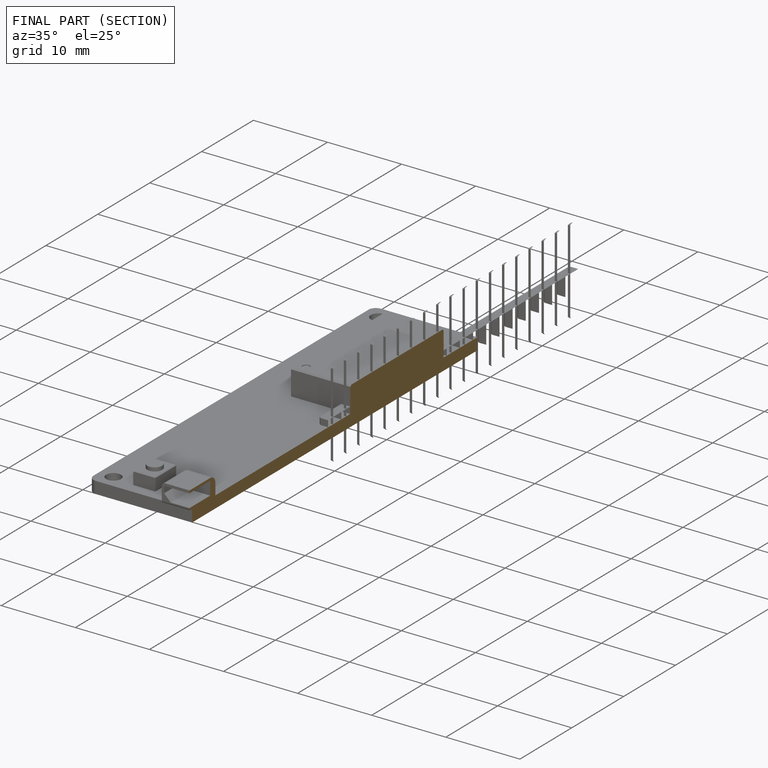
[diagram: finished part — half-section view (interior)]
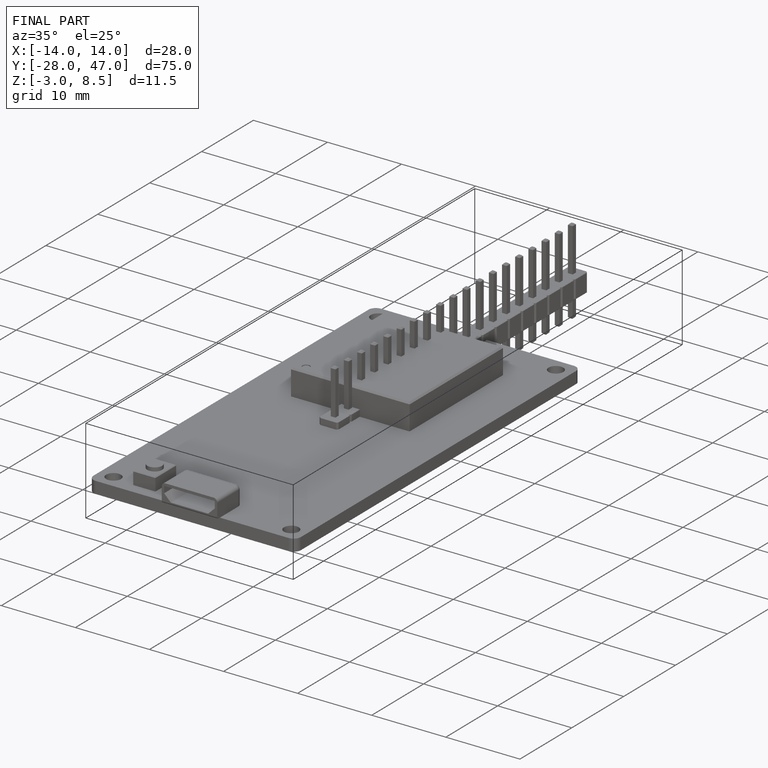
[diagram: finished part — iso view with bounding-box wireframe]
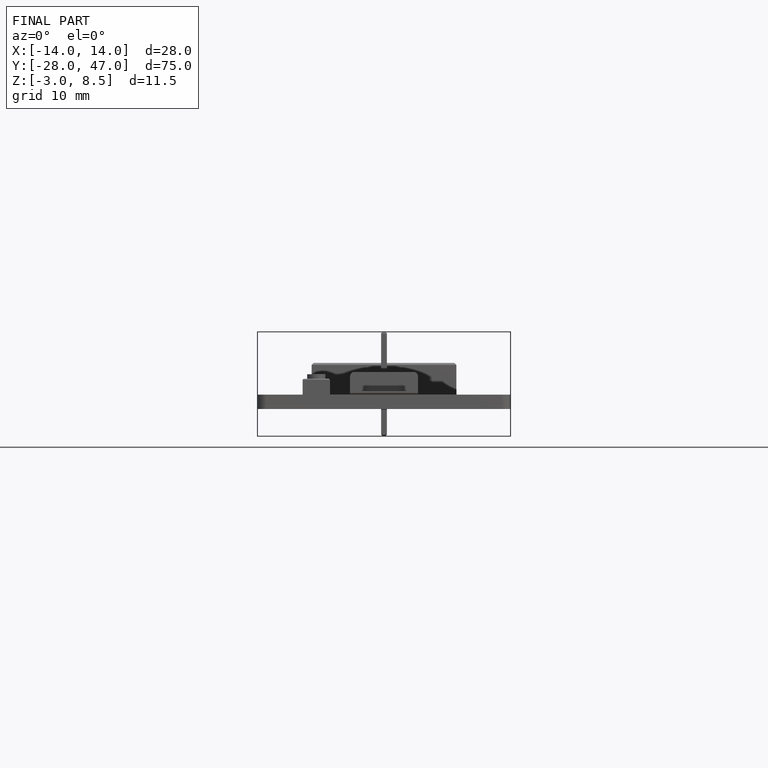
[diagram: finished part — front view with bounding-box wireframe]
